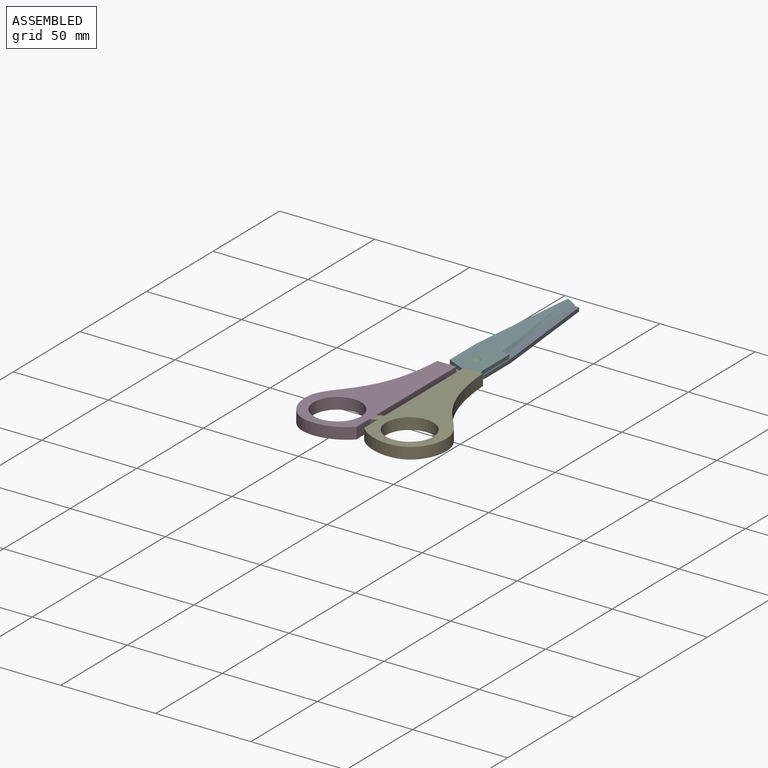
[diagram: assembled view]
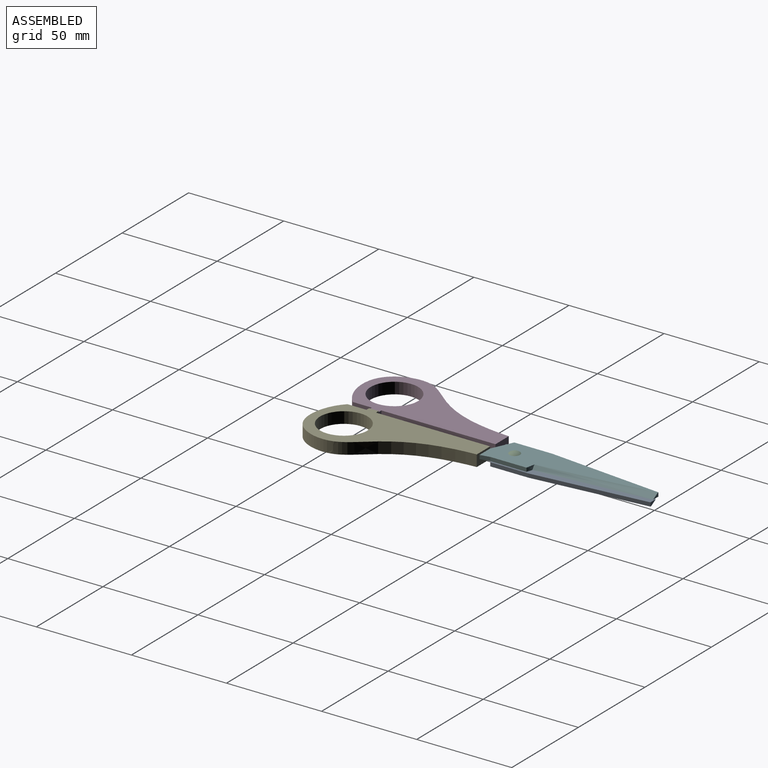
[diagram: assembled view, second angle]
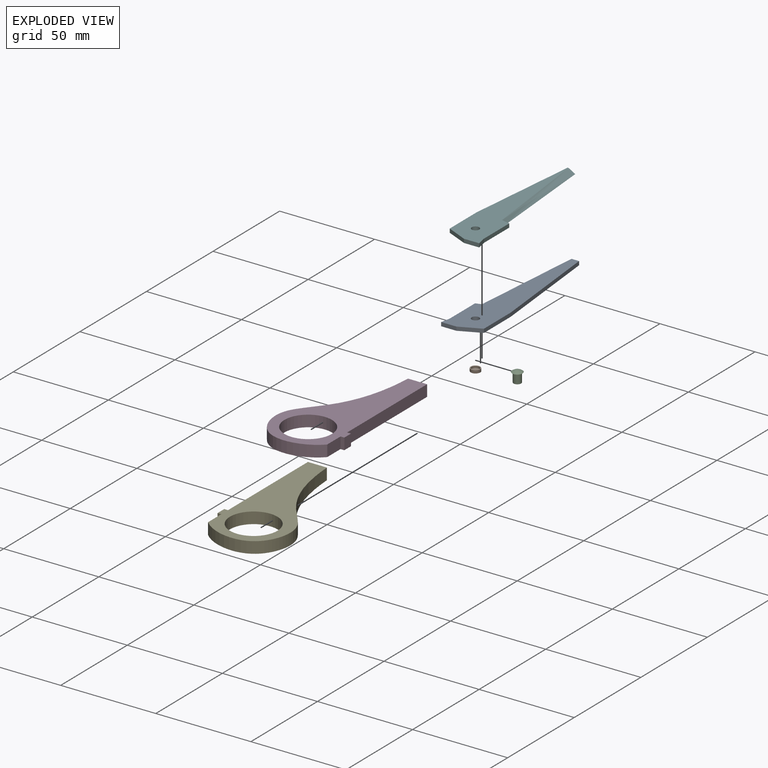
[diagram: exploded view]
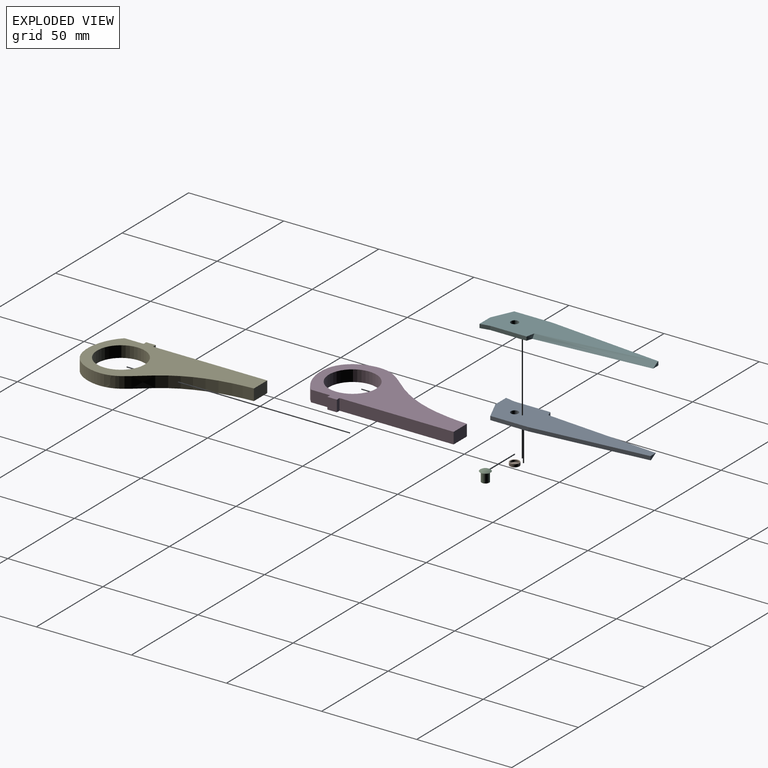
[diagram: exploded view, second angle]
ASSEMBLY  parts=6 mates=5
PART A: 12 faces, bbox 19x85x2 mm
  f0: plane 8x2mm, normal (0,-1,0), area 16mm2, adj f1,f2,f3,f4
  f1: plane 5x2mm, normal (-0.98,0.2,0), area 10.2mm2, adj f0,f2,f4,f5
  f2: plane 85x19mm, normal (0,0,1), area 980.9mm2, adj f0,f1,f3,f5,f6,f7,f8,f9
  f3: plane 11x5mm, normal (0.41,-0.91,0), area 24.2mm2, adj f0,f2,f4,f6
  f4: plane 85x19mm, normal (0,0,-1), area 830.2mm2, adj f0,f1,f3,f5,f6,f7,f8,f9
  f5: plane 19x2mm, normal (-1,0,0), area 38mm2, adj f1,f2,f4,f7
  f6: plane 20x2mm, normal (1,0,0), area 40mm2, adj f2,f3,f4,f10
  f7: bspline ~4.5x2mm, area 7.8mm2, adj f2,f4,f5,f9
  f8: plane 4x2mm, normal (0,1,0), area 4.5mm2, adj f2,f4,f9,f10
  f9: bspline ~60x8.5mm, area 193.7mm2, adj f2,f4,f7,f8
  f10: plane 60x6mm, normal (1,0.1,0), area 120.6mm2, adj f2,f4,f6,f8
  f11: cylinder r=2mm len=4mm, axis (0,0,-1), area 25.1mm2, adj f2,f4
PART B: 5 faces, bbox 5x5x1.5 mm
  f0: cylinder r=2.5mm len=5mm, axis (0,0,-1), area 23.6mm2, adj f1,f2
  f1: plane 5x5mm, normal (0,0,1), area 7.1mm2, adj f0,f3
  f2: plane 5x5mm, normal (0,0,-1), area 19.6mm2, adj f0
  f3: cylinder r=2mm len=4mm, axis (0,0,-1), area 12.6mm2, adj f1,f4
  f4: plane 4x4mm, normal (0,0,1), area 12.6mm2, adj f3
PART C: 4 faces, bbox 5.6x5.6x6 mm
  f0: cylinder r=2mm len=5mm, axis (0,0,-1), area 62.9mm2, adj f1,f2
  f1: plane 4x4mm, normal (0,0,-1), area 12.6mm2, adj f0
  f2: cone r=0mm half-angle=89.9deg, axis (0,0,-1), area 12.1mm2, adj f0,f3
  f3: sphere r=4.42mm, area 27.8mm2, adj f2
PART D: 10 faces, bbox 41x86.1x6 mm
  f0: extruded ~82.24x35.19mm, area 709mm2, adj f1,f6,f7,f8
  f1: plane 10x6mm, normal (0,1,0), area 60mm2, adj f0,f2,f7,f8
  f2: plane 60x6mm, normal (1,0,0), area 360mm2, adj f1,f3,f7,f8
  f3: plane 6x2mm, normal (0,1,0), area 12mm2, adj f2,f4,f7,f8
  f4: plane 6x5mm, normal (1,0,0), area 30mm2, adj f3,f5,f7,f8
  f5: plane 6x2mm, normal (0,-1,0), area 12mm2, adj f4,f6,f7,f8
  f6: plane 10x6mm, normal (1,0,0), area 60mm2, adj f0,f5,f7,f8
  f7: plane 86.07x41mm, normal (0,0,-1), area 1334.5mm2, adj f0,f1,f2,f3,f4,f5,f6,f9
  f8: plane 86.07x41mm, normal (0,0,1), area 1334.5mm2, adj f0,f1,f2,f3,f4,f5,f6,f9
  f9: cylinder r=12.5mm len=25mm, axis (0,0,1), area 471.2mm2, adj f7,f8
PART E: 10 faces, bbox 41x86.1x6 mm
  f0: extruded ~82.24x35.19mm, area 709mm2, adj f1,f6,f7,f8
  f1: plane 10x6mm, normal (0,1,0), area 60mm2, adj f0,f2,f7,f8
  f2: plane 60x6mm, normal (-1,0,0), area 360mm2, adj f1,f3,f7,f8
  f3: plane 6x2mm, normal (0,1,0), area 12mm2, adj f2,f4,f7,f8
  f4: plane 6x5mm, normal (-1,0,0), area 30mm2, adj f3,f5,f7,f8
  f5: plane 6x2mm, normal (0,-1,0), area 12mm2, adj f4,f6,f7,f8
  f6: plane 10x6mm, normal (-1,0,0), area 60mm2, adj f0,f5,f7,f8
  f7: plane 86.07x41mm, normal (0,0,1), area 1334.5mm2, adj f0,f1,f2,f3,f4,f5,f6,f9
  f8: plane 86.07x41mm, normal (0,0,-1), area 1334.5mm2, adj f0,f1,f2,f3,f4,f5,f6,f9
  f9: cylinder r=12.5mm len=25mm, axis (0,0,-1), area 471.2mm2, adj f7,f8
PART F: 12 faces, bbox 19x85x2 mm
  f0: plane 8x2mm, normal (0,-1,0), area 16mm2, adj f1,f2,f3,f4
  f1: plane 5x2mm, normal (0.98,0.2,0), area 10.2mm2, adj f0,f2,f4,f5
  f2: plane 85x19mm, normal (0,0,-1), area 980.9mm2, adj f0,f1,f3,f5,f6,f7,f8,f9
  f3: plane 11x5mm, normal (-0.41,-0.91,0), area 24.2mm2, adj f0,f2,f4,f6
  f4: plane 85x19mm, normal (0,0,1), area 830.2mm2, adj f0,f1,f3,f5,f6,f7,f8,f9
  f5: plane 19x2mm, normal (1,0,0), area 38mm2, adj f1,f2,f4,f7
  f6: plane 20x2mm, normal (-1,0,0), area 40mm2, adj f2,f3,f4,f10
  f7: bspline ~4.5x2mm, area 7.8mm2, adj f2,f4,f5,f9
  f8: plane 4x2mm, normal (0,1,0), area 4.5mm2, adj f2,f4,f9,f10
  f9: bspline ~60x8.5mm, area 193.7mm2, adj f2,f4,f7,f8
  f10: plane 60x6mm, normal (-1,0.1,0), area 120.6mm2, adj f2,f4,f6,f8
  f11: cylinder r=2mm len=4mm, axis (0,0,-1), area 25.1mm2, adj f2,f4
PLACE A rot(axis=(-0.12,-0.07,0.99),0deg) t=(0,0,-0.5)mm
PLACE B at identity
PLACE C at identity fixed
PLACE D rot(axis=(-0.06,-0.04,1),0deg) t=(0,0,-0.5)mm
PLACE E rot(axis=(-0.01,-0.01,-1),0deg) t=(0,0,0)mm
PLACE F rot(axis=(0,0,1),0deg) t=(0,0,0)mm
MATE revolute A.f11 <-> C.f0  axis (0,0,1) through (0,11.5,2.5)mm
MATE revolute F.f11 <-> C.f0  axis (0,0,1) through (0,11.5,5)mm
MATE fastened C.f0 <-> B.f0  axis (0,0,-1) through (0,11.5,0)mm
MATE fastened A.f0 <-> D.f1  axis (0,-1,0) through (-2,0,2.5)mm
MATE fastened F.f0 <-> E.f1  axis (0,-1,0) through (2,0,3)mm
